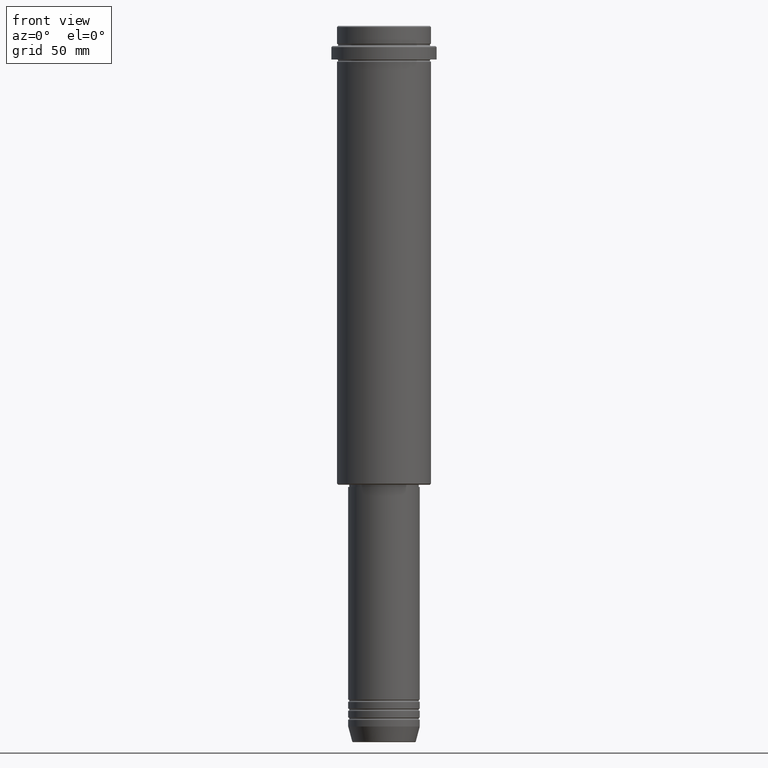
[diagram: clean part render]
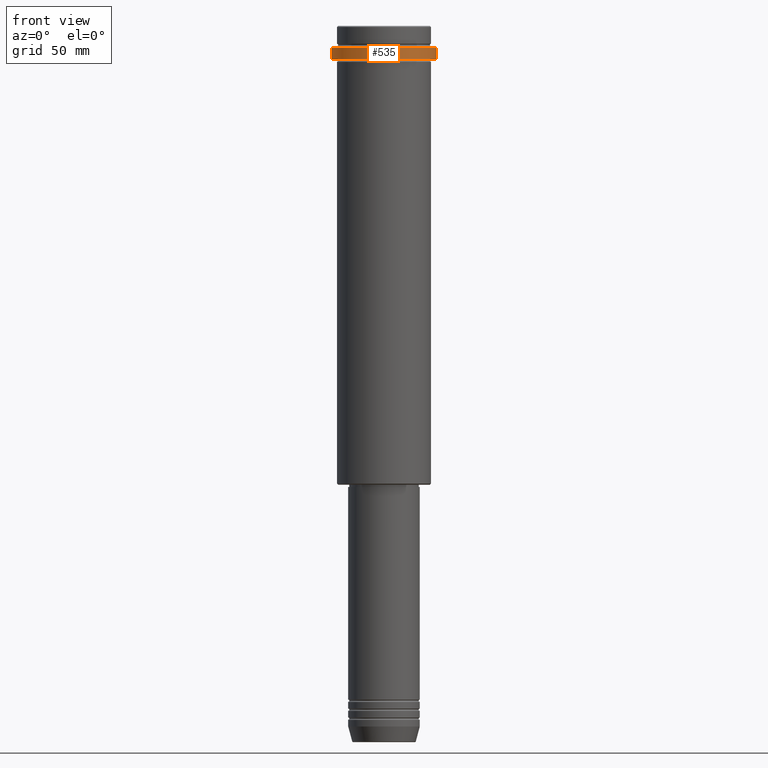
[diagram: same view with one face highlighted and labeled with its STEP entity id]
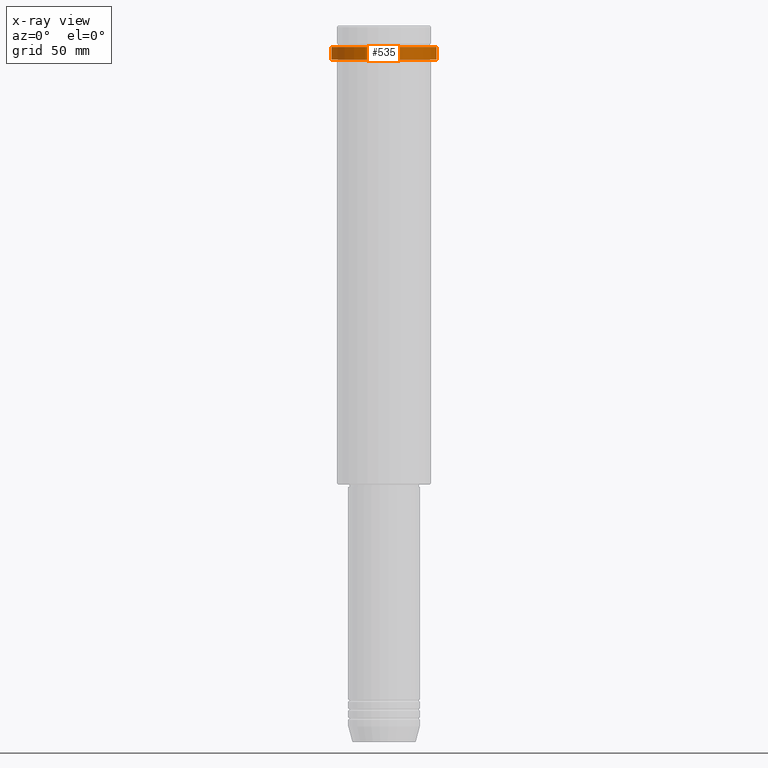
[diagram: x-ray of the same camera — body ghosted, the highlighted face saturated]
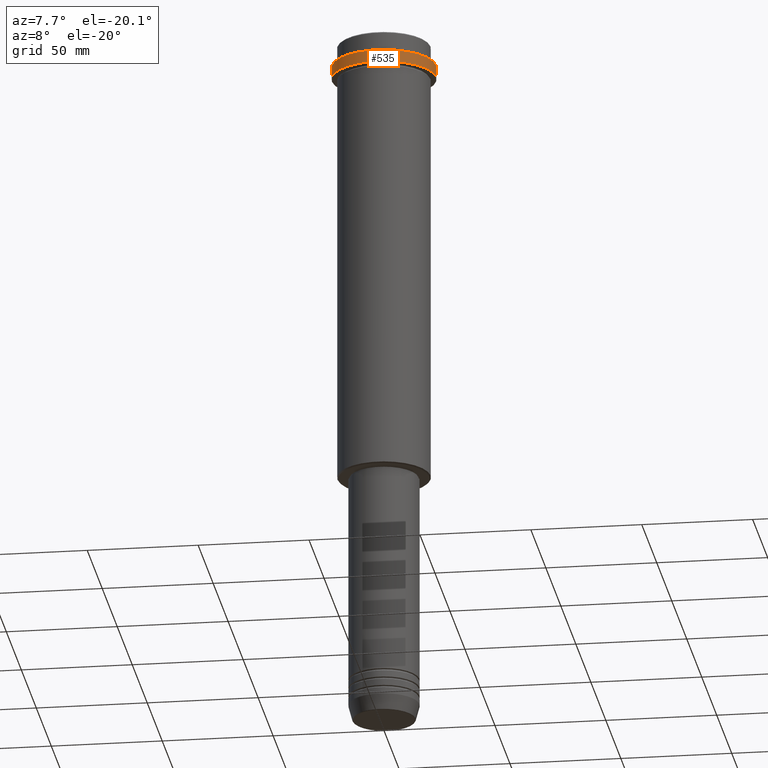
[diagram: same view with one face highlighted and labeled with its STEP entity id]
A machine part, front view. The second image highlights one B-rep face of the part: STEP entity #535.
The next image is the same camera in x-ray: the body ghosted, the highlighted face saturated — about 0% of this face is hidden behind the body in this view.
A second angle (auxiliary view) of the same face is appended — the face is thin or edge-on in the first view.
In plain terms, the highlighted cylindrical surface (partial cylindrical patch) has radius 23.5 mm, axis along (-0, -0, 1).
Its self-contained STEP definition (entity closure, byte-faithful):
#22 = CARTESIAN_POINT ( 'NONE',  ( 23.50000000000000000, 0.000000000000000000, -9.499999999999973355 ) ) ;
#32 = ORIENTED_EDGE ( 'NONE', *, *, #290, .T. ) ;
#46 = DIRECTION ( 'NONE',  ( -0.000000000000000000, -0.000000000000000000, 1.000000000000000000 ) ) ;
#64 = ORIENTED_EDGE ( 'NONE', *, *, #1141, .F. ) ;
#84 = VERTEX_POINT ( 'NONE', #284 ) ;
#114 = AXIS2_PLACEMENT_3D ( 'NONE', #168, #598, #286 ) ;
#165 = CIRCLE ( 'NONE', #1404, 23.50000000000000355 ) ;
#168 = CARTESIAN_POINT ( 'NONE',  ( 0.000000000000000000, 0.000000000000000000, 0.000000000000000000 ) ) ;
#179 = CARTESIAN_POINT ( 'NONE',  ( -23.50000000000000711, 2.877919977996281109E-15, -15.00000000000000178 ) ) ;
#231 = DIRECTION ( 'NONE',  ( 0.000000000000000000, 0.000000000000000000, -1.000000000000000000 ) ) ;
#240 = VECTOR ( 'NONE', #1062, 1000.000000000000000 ) ;
#284 = CARTESIAN_POINT ( 'NONE',  ( 23.50000000000000355, 0.000000000000000000, -15.00000000000000178 ) ) ;
#286 = DIRECTION ( 'NONE',  ( 1.000000000000000000, 0.000000000000000000, 0.000000000000000000 ) ) ;
#290 = EDGE_CURVE ( 'NONE', #1366, #1205, #1337, .T. ) ;
#291 = CARTESIAN_POINT ( 'NONE',  ( -23.50000000000000000, 2.877919977996280320E-15, 0.000000000000000000 ) ) ;
#379 = EDGE_LOOP ( 'NONE', ( #64, #411, #1228, #32 ) ) ;
#411 = ORIENTED_EDGE ( 'NONE', *, *, #920, .T. ) ;
#493 = FACE_OUTER_BOUND ( 'NONE', #379, .T. ) ;
#497 = CARTESIAN_POINT ( 'NONE',  ( -23.50000000000000000, 2.877919977996280320E-15, -9.499999999999973355 ) ) ;
#535 = ADVANCED_FACE ( 'NONE', ( #493 ), #1258, .T. ) ;
#536 = CARTESIAN_POINT ( 'NONE',  ( 0.000000000000000000, 0.000000000000000000, -15.00000000000000178 ) ) ;
#554 = CARTESIAN_POINT ( 'NONE',  ( 0.000000000000000000, 0.000000000000000000, -9.499999999999973355 ) ) ;
#559 = CARTESIAN_POINT ( 'NONE',  ( 23.50000000000000000, 0.000000000000000000, 0.000000000000000000 ) ) ;
#598 = DIRECTION ( 'NONE',  ( -0.000000000000000000, -0.000000000000000000, 1.000000000000000000 ) ) ;
#920 = EDGE_CURVE ( 'NONE', #1196, #84, #165, .T. ) ;
#995 = DIRECTION ( 'NONE',  ( 1.000000000000000000, 0.000000000000000000, 0.000000000000000000 ) ) ;
#1062 = DIRECTION ( 'NONE',  ( -0.000000000000000000, -0.000000000000000000, 1.000000000000000000 ) ) ;
#1141 = EDGE_CURVE ( 'NONE', #1196, #1205, #1253, .T. ) ;
#1196 = VERTEX_POINT ( 'NONE', #179 ) ;
#1205 = VERTEX_POINT ( 'NONE', #497 ) ;
#1218 = LINE ( 'NONE', #559, #1314 ) ;
#1223 = DIRECTION ( 'NONE',  ( 1.000000000000000000, 0.000000000000000000, 0.000000000000000000 ) ) ;
#1228 = ORIENTED_EDGE ( 'NONE', *, *, #1389, .T. ) ;
#1253 = LINE ( 'NONE', #291, #240 ) ;
#1256 = AXIS2_PLACEMENT_3D ( 'NONE', #554, #231, #995 ) ;
#1258 = CYLINDRICAL_SURFACE ( 'NONE', #114, 23.50000000000000000 ) ;
#1314 = VECTOR ( 'NONE', #46, 1000.000000000000000 ) ;
#1337 = CIRCLE ( 'NONE', #1256, 23.50000000000000000 ) ;
#1343 = DIRECTION ( 'NONE',  ( -0.000000000000000000, -0.000000000000000000, 1.000000000000000000 ) ) ;
#1366 = VERTEX_POINT ( 'NONE', #22 ) ;
#1389 = EDGE_CURVE ( 'NONE', #84, #1366, #1218, .T. ) ;
#1404 = AXIS2_PLACEMENT_3D ( 'NONE', #536, #1343, #1223 ) ;